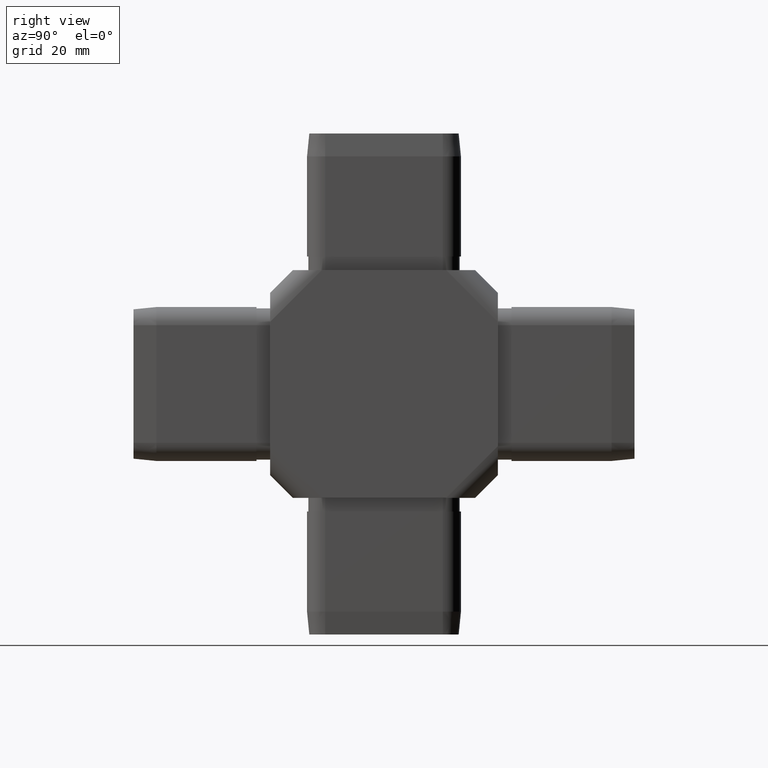
[diagram: clean part render]
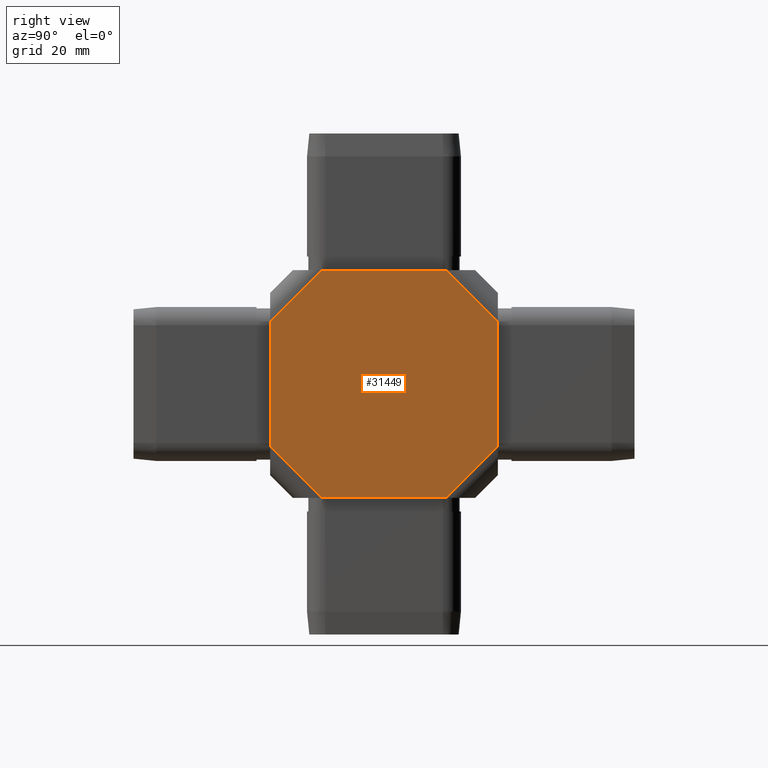
[diagram: same view with one face highlighted and labeled with its STEP entity id]
A machine part, right view. The second image highlights one B-rep face of the part: STEP entity #31449.
In plain terms, the highlighted planar face has unit normal (1, 0, -0).
Its self-contained STEP definition (entity closure, byte-faithful):
#49 = ORIENTED_EDGE ( 'NONE', *, *, #12906, .T. ) ;
#195 = LINE ( 'NONE', #3133, #4432 ) ;
#270 = EDGE_LOOP ( 'NONE', ( #25515, #9053, #31342, #12550, #20367, #5459, #49, #2300 ) ) ;
#518 = LINE ( 'NONE', #18701, #6720 ) ;
#1113 = DIRECTION ( 'NONE',  ( 1.471961680016042900E-016, -0.7071067811865494600, 0.7071067811865455700 ) ) ;
#1563 = CARTESIAN_POINT ( 'NONE',  ( 20.00000000000000400, -25.00000000000000000, 25.00000000000000000 ) ) ;
#1781 = DIRECTION ( 'NONE',  ( -0.0000000000000000000, -0.0000000000000000000, -1.000000000000000000 ) ) ;
#1829 = VERTEX_POINT ( 'NONE', #9432 ) ;
#2300 = ORIENTED_EDGE ( 'NONE', *, *, #30748, .T. ) ;
#3133 = CARTESIAN_POINT ( 'NONE',  ( 19.99999999999999300, 25.00000000000000000, 25.00000000000000000 ) ) ;
#4432 = VECTOR ( 'NONE', #12925, 1000.000000000000000 ) ;
#4973 = DIRECTION ( 'NONE',  ( -1.471961680016035000E-016, 0.7071067811865455700, 0.7071067811865494600 ) ) ;
#5459 = ORIENTED_EDGE ( 'NONE', *, *, #10437, .T. ) ;
#5538 = VECTOR ( 'NONE', #1113, 1000.000000000000200 ) ;
#6130 = LINE ( 'NONE', #29787, #8475 ) ;
#6411 = VERTEX_POINT ( 'NONE', #26354 ) ;
#6720 = VECTOR ( 'NONE', #28508, 1000.000000000000000 ) ;
#7836 = EDGE_CURVE ( 'NONE', #6411, #9349, #195, .T. ) ;
#8475 = VECTOR ( 'NONE', #4973, 1000.000000000000200 ) ;
#8751 = CARTESIAN_POINT ( 'NONE',  ( 19.99999999999999600, 5.681980515339351000, 44.31801948466054600 ) ) ;
#8936 = EDGE_CURVE ( 'NONE', #6411, #24942, #20227, .T. ) ;
#9007 = EDGE_CURVE ( 'NONE', #24942, #11550, #518, .T. ) ;
#9053 = ORIENTED_EDGE ( 'NONE', *, *, #15634, .T. ) ;
#9250 = PLANE ( 'NONE',  #22609 ) ;
#9349 = VERTEX_POINT ( 'NONE', #23247 ) ;
#9432 = CARTESIAN_POINT ( 'NONE',  ( 20.00000000000000400, -25.00000000000000000, 13.63603896932103300 ) ) ;
#9814 = CARTESIAN_POINT ( 'NONE',  ( 20.00000000000000000, -13.63603896932104400, -25.00000000000000000 ) ) ;
#10437 = EDGE_CURVE ( 'NONE', #11550, #1829, #15191, .T. ) ;
#10817 = CARTESIAN_POINT ( 'NONE',  ( 20.00000000000000400, -19.31801948466041500, -19.31801948466065600 ) ) ;
#11550 = VERTEX_POINT ( 'NONE', #14885 ) ;
#11601 = DIRECTION ( 'NONE',  ( 2.081668171172168500E-016, -1.000000000000000000, 0.0000000000000000000 ) ) ;
#12435 = VECTOR ( 'NONE', #11601, 1000.000000000000000 ) ;
#12550 = ORIENTED_EDGE ( 'NONE', *, *, #8936, .T. ) ;
#12765 = CARTESIAN_POINT ( 'NONE',  ( 20.00000000000000400, -25.00000000000000000, -13.63603896932109900 ) ) ;
#12906 = EDGE_CURVE ( 'NONE', #1829, #25896, #24421, .T. ) ;
#12925 = DIRECTION ( 'NONE',  ( -0.0000000000000000000, -0.0000000000000000000, -1.000000000000000000 ) ) ;
#14416 = VECTOR ( 'NONE', #28375, 1000.000000000000200 ) ;
#14885 = CARTESIAN_POINT ( 'NONE',  ( 20.00000000000000000, -13.63603896932109200, 25.00000000000000000 ) ) ;
#15191 = LINE ( 'NONE', #8751, #14416 ) ;
#15634 = EDGE_CURVE ( 'NONE', #28633, #9349, #6130, .T. ) ;
#16612 = DIRECTION ( 'NONE',  ( -2.081668171172168500E-016, 1.000000000000000000, 0.0000000000000000000 ) ) ;
#17423 = LINE ( 'NONE', #21573, #12435 ) ;
#17633 = FACE_OUTER_BOUND ( 'NONE', #270, .T. ) ;
#17803 = VERTEX_POINT ( 'NONE', #9814 ) ;
#18631 = VECTOR ( 'NONE', #1781, 1000.000000000000000 ) ;
#18701 = CARTESIAN_POINT ( 'NONE',  ( 19.99999999999999300, 25.00000000000000000, 25.00000000000000000 ) ) ;
#19197 = LINE ( 'NONE', #10817, #27292 ) ;
#20227 = LINE ( 'NONE', #20630, #5538 ) ;
#20367 = ORIENTED_EDGE ( 'NONE', *, *, #9007, .T. ) ;
#20516 = EDGE_CURVE ( 'NONE', #28633, #17803, #17423, .T. ) ;
#20630 = CARTESIAN_POINT ( 'NONE',  ( 19.99999999999999300, 19.31801948466054600, 19.31801948466051400 ) ) ;
#21573 = CARTESIAN_POINT ( 'NONE',  ( 19.99999999999999300, 25.00000000000000000, -25.00000000000000000 ) ) ;
#21717 = DIRECTION ( 'NONE',  ( 1.000000000000000000, 2.081668171172168500E-016, -0.0000000000000000000 ) ) ;
#22609 = AXIS2_PLACEMENT_3D ( 'NONE', #31346, #21717, #16612 ) ;
#23161 = DIRECTION ( 'NONE',  ( -1.471961680016042900E-016, 0.7071067811865494600, -0.7071067811865455700 ) ) ;
#23247 = CARTESIAN_POINT ( 'NONE',  ( 19.99999999999999300, 25.00000000000000000, -13.63603896932103700 ) ) ;
#23682 = CARTESIAN_POINT ( 'NONE',  ( 19.99999999999999600, 13.63603896932109900, -25.00000000000000000 ) ) ;
#24421 = LINE ( 'NONE', #1563, #18631 ) ;
#24942 = VERTEX_POINT ( 'NONE', #30075 ) ;
#25515 = ORIENTED_EDGE ( 'NONE', *, *, #20516, .F. ) ;
#25896 = VERTEX_POINT ( 'NONE', #12765 ) ;
#26354 = CARTESIAN_POINT ( 'NONE',  ( 19.99999999999999300, 25.00000000000000000, 13.63603896932109200 ) ) ;
#27292 = VECTOR ( 'NONE', #23161, 1000.000000000000200 ) ;
#28375 = DIRECTION ( 'NONE',  ( 1.471961680016035000E-016, -0.7071067811865455700, -0.7071067811865494600 ) ) ;
#28508 = DIRECTION ( 'NONE',  ( 2.081668171172168500E-016, -1.000000000000000000, 0.0000000000000000000 ) ) ;
#28633 = VERTEX_POINT ( 'NONE', #23682 ) ;
#29787 = CARTESIAN_POINT ( 'NONE',  ( 19.99999999999998900, 44.31801948466051800, 5.681980515339589900 ) ) ;
#30075 = CARTESIAN_POINT ( 'NONE',  ( 19.99999999999999600, 13.63603896932103000, 25.00000000000000000 ) ) ;
#30748 = EDGE_CURVE ( 'NONE', #25896, #17803, #19197, .T. ) ;
#31342 = ORIENTED_EDGE ( 'NONE', *, *, #7836, .F. ) ;
#31346 = CARTESIAN_POINT ( 'NONE',  ( 19.99999999999999300, 25.00000000000000000, 25.00000000000000000 ) ) ;
#31449 = ADVANCED_FACE ( 'NONE', ( #17633 ), #9250, .T. ) ;